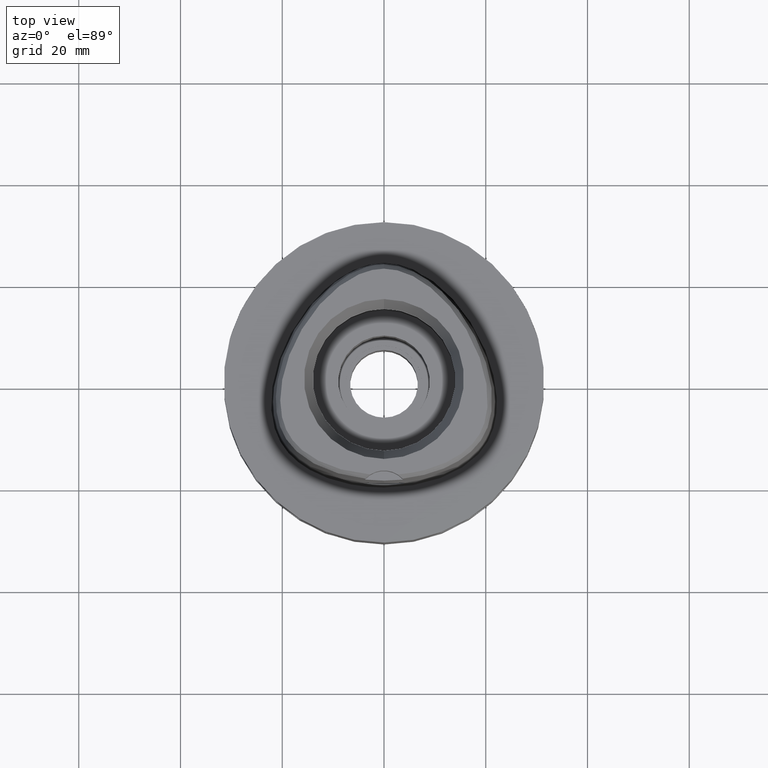
[diagram: clean part render]
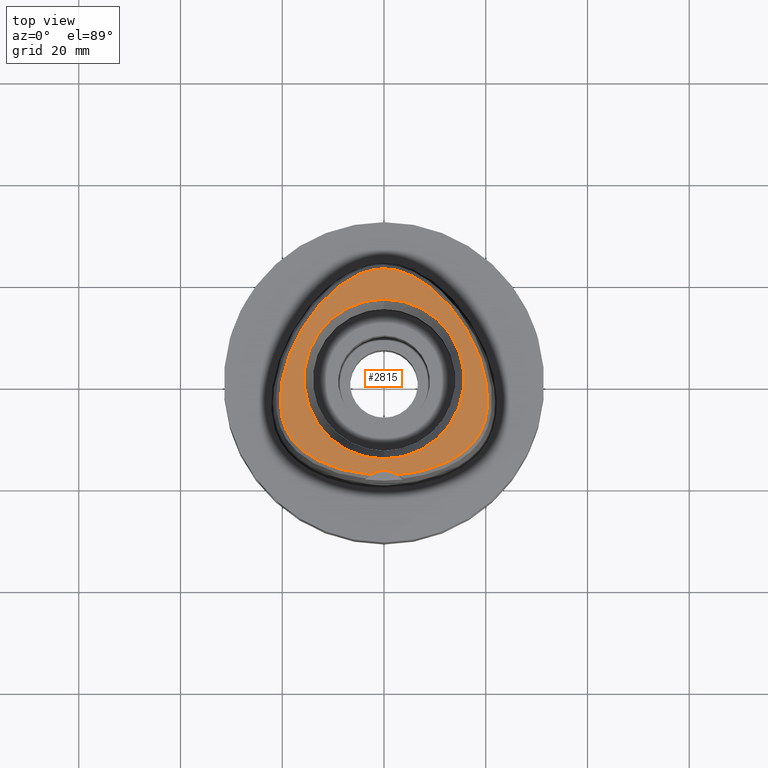
[diagram: same view with one face highlighted and labeled with its STEP entity id]
A machine part, top view. The second image highlights one B-rep face of the part: STEP entity #2815.
In plain terms, the highlighted planar face has unit normal (0, 0, 1).
Its self-contained STEP definition (entity closure, byte-faithful):
#86 = CARTESIAN_POINT ( 'NONE',  ( -10.17136073855374789, -17.24644253470380306, 38.00000000000444800 ) ) ;
#113 = CARTESIAN_POINT ( 'NONE',  ( -4.706994425064517706, -18.56721852572872677, 38.00000000000449063 ) ) ;
#142 = CARTESIAN_POINT ( 'NONE',  ( 19.78323211892965716, -8.541156231035873958, 37.99999999999725731 ) ) ;
#172 = CARTESIAN_POINT ( 'NONE',  ( 1.325020189552460037, 21.61081414408899803, 38.00000000000054712 ) ) ;
#175 = CARTESIAN_POINT ( 'NONE',  ( -18.79649882725230725, 4.256255933891756271, 37.99999999999073452 ) ) ;
#178 = CARTESIAN_POINT ( 'NONE',  ( 2.682287482605000051, -18.78036330228999873, 38.00000000000000000 ) ) ;
#197 = CARTESIAN_POINT ( 'NONE',  ( 12.44125753246211907, 14.89118158853625751, 37.99999999999641886 ) ) ;
#252 = CARTESIAN_POINT ( 'NONE',  ( 0.6513209347955434270, 21.67370899611415780, 38.00000000000317613 ) ) ;
#273 = B_SPLINE_CURVE_WITH_KNOTS ( 'NONE', 3,
 ( #2626, #1835, #602, #113, #4305, #2659, #5167, #86, #1799, #4700, #3519, #1745, #2599, #949, #3042, #4731, #4278, #1399, #511, #1861, #1771, #3075, #1002, #4755, #1037, #5194, #2716, #3454, #5130, #2686, #4363, #2279, #3976, #1361, #3952, #175, #3543, #5222, #3132, #4397, #627, #2306, #653, #3600, #2400, #1583, #5321, #4449, #1938, #4527, #2794, #3648, #2328, #3627, #279, #2740, #4003, #1915, #3160, #5275 ),
 .UNSPECIFIED., .F., .F.,
 ( 4, 1, 1, 1, 1, 1, 1, 1, 1, 1, 1, 1, 1, 1, 1, 1, 1, 1, 1, 1, 1, 1, 1, 1, 1, 1, 1, 1, 1, 1, 1, 1, 1, 1, 1, 1, 1, 1, 1, 1, 1, 1, 1, 1, 1, 1, 1, 1, 1, 1, 1, 1, 1, 1, 1, 1, 1, 4 ),
 ( 0.0000000000000000000, 0.005420919554200098744, 0.02318126027639999531, 0.04094160099879995407, 0.05870194172099996166, 0.07646228244330000035, 0.09422262316550000794, 0.1119829638877999356, 0.1297433046099999432, 0.1475036453321999508, 0.1652639860544999895, 0.1830243267768000281, 0.2007846674991000668, 0.2185450082212999634, 0.2363053489436000021, 0.2540656896658000097, 0.2718260303881000484, 0.2895863711103000560, 0.3073467118325999836, 0.3251070525547999912, 0.3428673932771000299, 0.3606277339994000686, 0.3783880747216000762, 0.3961484154438998928, 0.4139087561661000114, 0.4316690968884000501, 0.4494294376106000577, 0.4671897783328999854, 0.4849501190552000240, 0.5027104597774000316, 0.5204708004996999593, 0.5382311412219000779, 0.5559914819442000056, 0.5737518226664000132, 0.5915121633886999408, 0.6092725041108999484, 0.6270328448331999871, 0.6447931855555000258, 0.6625535262777000334, 0.6803138669999999610, 0.6980742077221999686, 0.7158345484445000073, 0.7335948891667000149, 0.7513552298890000536, 0.7691155706112000612, 0.7868759113336000199, 0.8046362520558000275, 0.8223965927780999552, 0.8401569335002999628, 0.8579172742224999704, 0.8756776149448000091, 0.8934379556670000166, 0.9111982963893099363, 0.9289586371115700070, 0.9467189778338299666, 0.9644793185560800453, 0.9822396592783400049, 1.000000000000000000 ),
 .UNSPECIFIED. ) ;
#279 = CARTESIAN_POINT ( 'NONE',  ( -2.735698246183474236, 21.34559102902269601, 38.00000000000270006 ) ) ;
#290 = FACE_BOUND ( 'NONE', #3432, .T. ) ;
#301 = CARTESIAN_POINT ( 'NONE',  ( 6.196495988003619004, -18.31673538864916040, 37.99999999999616307 ) ) ;
#306 = CIRCLE ( 'NONE', #4630, 15.71487483155999776 ) ;
#401 = PLANE ( 'NONE',  #2953 ) ;
#511 = CARTESIAN_POINT ( 'NONE',  ( -18.31748213707427908, -11.58791794387968643, 37.99999999999817391 ) ) ;
#567 = CARTESIAN_POINT ( 'NONE',  ( 4.255661039972708615, 20.86618068829861627, 37.99999999999197087 ) ) ;
#602 = CARTESIAN_POINT ( 'NONE',  ( -3.522896839654153123, -18.70811514173789547, 37.99999999999940314 ) ) ;
#623 = CARTESIAN_POINT ( 'NONE',  ( 2.736932690727049700, 21.34527940057159157, 37.99999999999713651 ) ) ;
#627 = CARTESIAN_POINT ( 'NONE',  ( -15.24692477332593832, 11.25717358966707060, 38.00000000000265032 ) ) ;
#653 = CARTESIAN_POINT ( 'NONE',  ( -13.40435640711487864, 13.76268382997171003, 37.99999999999527489 ) ) ;
#723 = CARTESIAN_POINT ( 'NONE',  ( 19.54993126781585389, -9.226212439886355199, 37.99999999999922551 ) ) ;
#726 = VERTEX_POINT ( 'NONE', #2974 ) ;
#739 = DIRECTION ( 'NONE',  ( 1.000000000000000000, 0.0000000000000000000, 0.0000000000000000000 ) ) ;
#750 = CARTESIAN_POINT ( 'NONE',  ( 17.91165267838870889, -12.13575389398076965, 38.00000000000229505 ) ) ;
#777 = CARTESIAN_POINT ( 'NONE',  ( 7.606839420237251126, -18.00827588386171740, 37.99999999999702283 ) ) ;
#930 = DIRECTION ( 'NONE',  ( 0.0000000000000000000, 1.000000000000000000, 0.0000000000000000000 ) ) ;
#934 = DIRECTION ( 'NONE',  ( 0.0000000000000000000, 1.000000000000000000, 0.0000000000000000000 ) ) ;
#945 = CARTESIAN_POINT ( 'NONE',  ( 0.0000000000000000000, -15.71487483155999776, 38.00000000000000000 ) ) ;
#949 = CARTESIAN_POINT ( 'NONE',  ( -15.71788912669431681, -14.29843101566143027, 37.99999999999405276 ) ) ;
#1002 = CARTESIAN_POINT ( 'NONE',  ( -19.54919922642054075, -9.228169790568536257, 38.00000000000173372 ) ) ;
#1037 = CARTESIAN_POINT ( 'NONE',  ( -19.98419490691567901, -7.809898894995969343, 37.99999999999875655 ) ) ;
#1061 = CARTESIAN_POINT ( 'NONE',  ( 16.09765529146371321, 9.909410920133332468, 37.99999999999095479 ) ) ;
#1084 = CARTESIAN_POINT ( 'NONE',  ( 19.64387775268415126, 1.522048414458394117, 37.99999999999958789 ) ) ;
#1113 = CARTESIAN_POINT ( 'NONE',  ( 4.715576077242017661, -18.56597918135031833, 37.99999999999604938 ) ) ;
#1187 = CARTESIAN_POINT ( 'NONE',  ( 19.28677546797380771, -9.867757137506218967, 37.99999999999655387 ) ) ;
#1219 = DIRECTION ( 'NONE',  ( 0.0000000000000000000, 0.0000000000000000000, 1.000000000000000000 ) ) ;
#1308 = ORIENTED_EDGE ( 'NONE', *, *, #2416, .F. ) ;
#1335 = VERTEX_POINT ( 'NONE', #4036 ) ;
#1361 = CARTESIAN_POINT ( 'NONE',  ( -19.64434054693244391, 1.520253387635722042, 37.99999999999833733 ) ) ;
#1399 = CARTESIAN_POINT ( 'NONE',  ( -17.91005512243888731, -12.13778127739902324, 37.99999999999863576 ) ) ;
#1447 = CARTESIAN_POINT ( 'NONE',  ( 7.655962789343798036, 19.09402979099454001, 38.00000000000375877 ) ) ;
#1483 = CARTESIAN_POINT ( 'NONE',  ( 2.018320379028085032, 21.50256508436634206, 37.99999999999489830 ) ) ;
#1532 = CARTESIAN_POINT ( 'NONE',  ( 20.27923816685482450, -6.179850483268137573, 38.00000000000208189 ) ) ;
#1561 = CARTESIAN_POINT ( 'NONE',  ( 0.0000000000000000000, 0.0000000000000000000, 38.00000000000000000 ) ) ;
#1583 = CARTESIAN_POINT ( 'NONE',  ( -10.48962422759879054, 16.86631853279006776, 38.00000000000246558 ) ) ;
#1745 = CARTESIAN_POINT ( 'NONE',  ( -14.21001600787439756, -15.34519100085975651, 37.99999999999709388 ) ) ;
#1771 = CARTESIAN_POINT ( 'NONE',  ( -18.99520880203909101, -10.46968343926526046, 38.00000000000003553 ) ) ;
#1799 = CARTESIAN_POINT ( 'NONE',  ( -11.31790883121301583, -16.80796958613770897, 37.99999999999212719 ) ) ;
#1831 = CARTESIAN_POINT ( 'NONE',  ( 15.24661770199428190, 11.25762885478387432, 37.99999999999771205 ) ) ;
#1835 = CARTESIAN_POINT ( 'NONE',  ( -2.841965291530528681, -18.76757795571863241, 37.99999999999891998 ) ) ;
#1861 = CARTESIAN_POINT ( 'NONE',  ( -18.67608643721939643, -11.03561202291267662, 38.00000000000157030 ) ) ;
#1877 = EDGE_CURVE ( 'NONE', #726, #5355, #4528, .T. ) ;
#1915 = CARTESIAN_POINT ( 'NONE',  ( -0.6498990081535477303, 21.67378274708112329, 37.99999999999444356 ) ) ;
#1936 = CARTESIAN_POINT ( 'NONE',  ( 20.30478359881485417, -2.175347700950605923, 37.99999999999539568 ) ) ;
#1938 = CARTESIAN_POINT ( 'NONE',  ( -7.655222869372892980, 19.09452359226769502, 37.99999999999257483 ) ) ;
#1960 = CARTESIAN_POINT ( 'NONE',  ( 15.72078707639994199, -14.29615620309490964, 37.99999999999574385 ) ) ;
#2039 = CARTESIAN_POINT ( 'NONE',  ( 13.33890749495820671, -15.84912955620109187, 37.99999999999750599 ) ) ;
#2068 = CARTESIAN_POINT ( 'NONE',  ( 11.32341394162737380, -16.80569392800371276, 37.99999999999388933 ) ) ;
#2242 = CARTESIAN_POINT ( 'NONE',  ( 18.79595068775649480, 4.257753965102302196, 37.99999999999671729 ) ) ;
#2279 = CARTESIAN_POINT ( 'NONE',  ( -20.16012968311571285, -1.009698174524256586, 38.00000000000157740 ) ) ;
#2304 = CARTESIAN_POINT ( 'NONE',  ( 9.524842839488044888, 17.70516372194487431, 38.00000000000207478 ) ) ;
#2306 = CARTESIAN_POINT ( 'NONE',  ( -14.34402387966321513, 12.54761970512633518, 38.00000000000000000 ) ) ;
#2328 = CARTESIAN_POINT ( 'NONE',  ( -4.254559144978006913, 20.86660163697580828, 37.99999999999677414 ) ) ;
#2330 = VERTEX_POINT ( 'NONE', #3789 ) ;
#2334 = ORIENTED_EDGE ( 'NONE', *, *, #4180, .F. ) ;
#2353 = CARTESIAN_POINT ( 'NONE',  ( 20.15982952132432260, -1.007721426051790825, 38.00000000000218137 ) ) ;
#2373 = CARTESIAN_POINT ( 'NONE',  ( 2.682287482605000051, -18.78036330228999873, 38.00000000000000000 ) ) ;
#2400 = CARTESIAN_POINT ( 'NONE',  ( -11.46564124494196513, 15.92741340513292769, 37.99999999999345590 ) ) ;
#2416 = EDGE_CURVE ( 'NONE', #1335, #2330, #273, .T. ) ;
#2482 = CARTESIAN_POINT ( 'NONE',  ( 10.17751632998551159, -17.24426134458732918, 37.99999999999791100 ) ) ;
#2499 = ORIENTED_EDGE ( 'NONE', *, *, #5016, .F. ) ;
#2571 = B_SPLINE_CURVE_WITH_KNOTS ( 'NONE', 3,
 ( #4780, #4395, #252, #172, #1483, #623, #3103, #567, #4030, #3541, #5219, #1447, #3129, #2304, #3157, #3974, #197, #5246, #4836, #1831, #1061, #3597, #5272, #3184, #2242, #4862, #1084, #2763, #2353, #1936, #3625, #5298, #2654, #1532, #4753, #3917, #142, #723, #1187, #4054, #4160, #3722, #750, #2792, #2873, #4559, #1960, #4076, #3698, #2039, #3675, #2068, #2482, #3239, #777, #301, #1113, #5376, #3207, #2373 ),
 .UNSPECIFIED., .F., .F.,
 ( 4, 1, 1, 1, 1, 1, 1, 1, 1, 1, 1, 1, 1, 1, 1, 1, 1, 1, 1, 1, 1, 1, 1, 1, 1, 1, 1, 1, 1, 1, 1, 1, 1, 1, 1, 1, 1, 1, 1, 1, 1, 1, 1, 1, 1, 1, 1, 1, 1, 1, 1, 1, 1, 1, 1, 1, 1, 4 ),
 ( 0.0000000000000000000, 0.01775854187129999318, 0.03551708374169992855, 0.05327562561200005486, 0.07103416748239999023, 0.08879270935270000553, 0.1065512512231000519, 0.1243097930933999562, 0.1420683349638000026, 0.1598268768341000179, 0.1775854187044000332, 0.1953439605747999686, 0.2131025024450999839, 0.2308610443155000302, 0.2486195861857999345, 0.2663781280563000120, 0.2841366699266000273, 0.3018952117970000737, 0.3196537536672999780, 0.3374122955377000244, 0.3551708374080000397, 0.3729293792782999439, 0.3906879211486999903, 0.4084464630190000056, 0.4262050048894000520, 0.4439635467596999563, 0.4617220886301000027, 0.4794806305004000180, 0.4972391723707999533, 0.5149977142410999686, 0.5327562561113999839, 0.5505147979818000303, 0.5682733398521000456, 0.5860318817224999810, 0.6037904235927999963, 0.6215489654632000427, 0.6393075073334999470, 0.6570660492038999934, 0.6748245910742000087, 0.6925831329445000240, 0.7103416748149000703, 0.7281002166851999746, 0.7458587585556000210, 0.7636173004259000363, 0.7813758422962999717, 0.7991343841665999870, 0.8168929260370000334, 0.8346514679073000487, 0.8524100097776999840, 0.8701685516479999993, 0.8879270935183000146, 0.9056856353886799660, 0.9234441772589799813, 0.9412027191293600437, 0.9589612609997000270, 0.9767198028700500023, 0.9944783447403919840, 1.000000000000000000 ),
 .UNSPECIFIED. ) ;
#2599 = CARTESIAN_POINT ( 'NONE',  ( -15.00295592774140019, -14.82617991126211798, 37.99999999999914024 ) ) ;
#2626 = CARTESIAN_POINT ( 'NONE',  ( -2.682279906006999948, -18.78035848609999903, 38.00000000000000000 ) ) ;
#2654 = CARTESIAN_POINT ( 'NONE',  ( 20.36412151361240674, -5.276385427453623045, 37.99999999999580780 ) ) ;
#2659 = CARTESIAN_POINT ( 'NONE',  ( -7.599370508970960003, -18.01010694911684951, 37.99999999999879918 ) ) ;
#2686 = CARTESIAN_POINT ( 'NONE',  ( -20.38301517462918966, -3.278344853327717967, 37.99999999999993605 ) ) ;
#2716 = CARTESIAN_POINT ( 'NONE',  ( -20.27898581532774358, -6.181921586190500584, 37.99999999999534595 ) ) ;
#2740 = CARTESIAN_POINT ( 'NONE',  ( -2.017025177696464500, 21.50280829368302093, 37.99999999999393907 ) ) ;
#2763 = CARTESIAN_POINT ( 'NONE',  ( 19.94150023628099788, 0.2261566111945268187, 37.99999999999849365 ) ) ;
#2783 = AXIS2_PLACEMENT_3D ( 'NONE', #4770, #4713, #934 ) ;
#2792 = CARTESIAN_POINT ( 'NONE',  ( 17.45306278053644178, -12.68156296993868359, 37.99999999999921130 ) ) ;
#2794 = CARTESIAN_POINT ( 'NONE',  ( -5.893543501601852697, 20.13235399352315724, 38.00000000000446931 ) ) ;
#2815 = ADVANCED_FACE ( 'NONE', ( #5365, #290 ), #401, .T. ) ;
#2873 = CARTESIAN_POINT ( 'NONE',  ( 16.93855157777791831, -13.22377441789378416, 37.99999999999563016 ) ) ;
#2902 = DIRECTION ( 'NONE',  ( 0.0000000000000000000, -1.000000000000000000, 0.0000000000000000000 ) ) ;
#2953 = AXIS2_PLACEMENT_3D ( 'NONE', #4573, #3737, #739 ) ;
#2974 = CARTESIAN_POINT ( 'NONE',  ( 0.0000000000000000000, 15.71487483155999776, 38.00000000000000000 ) ) ;
#3042 = CARTESIAN_POINT ( 'NONE',  ( -16.36032397154120588, -13.76458520345357250, 37.99999999999922551 ) ) ;
#3075 = CARTESIAN_POINT ( 'NONE',  ( -19.28591707036659386, -9.869682450887138359, 37.99999999999221245 ) ) ;
#3103 = CARTESIAN_POINT ( 'NONE',  ( 3.482188079160276839, 21.13472718027737685, 37.99999999999462830 ) ) ;
#3108 = EDGE_LOOP ( 'NONE', ( #5388, #1308, #2334 ) ) ;
#3129 = CARTESIAN_POINT ( 'NONE',  ( 8.578848111817228173, 18.44609846599589176, 37.99999999999308642 ) ) ;
#3132 = CARTESIAN_POINT ( 'NONE',  ( -16.88647904405548061, 8.517821442303015189, 38.00000000000065370 ) ) ;
#3157 = CARTESIAN_POINT ( 'NONE',  ( 10.48999540691041688, 16.86597469870065424, 37.99999999999776179 ) ) ;
#3160 = CARTESIAN_POINT ( 'NONE',  ( -0.2181979014508676762, 21.68728795389064601, 37.99999999999275246 ) ) ;
#3170 = DIRECTION ( 'NONE',  ( 0.0000000000000000000, 0.0000000000000000000, 1.000000000000000000 ) ) ;
#3184 = CARTESIAN_POINT ( 'NONE',  ( 18.24247239569677603, 5.672548708071828649, 37.99999999999695177 ) ) ;
#3191 = VERTEX_POINT ( 'NONE', #178 ) ;
#3207 = CARTESIAN_POINT ( 'NONE',  ( 2.845098933833245525, -18.76733062685659803, 38.00000000000077449 ) ) ;
#3239 = CARTESIAN_POINT ( 'NONE',  ( 8.936919536467458514, -17.64796721715088879, 37.99999999999982236 ) ) ;
#3432 = EDGE_LOOP ( 'NONE', ( #2499, #5416 ) ) ;
#3454 = CARTESIAN_POINT ( 'NONE',  ( -20.36398648679638868, -5.278470727085379899, 37.99999999999672440 ) ) ;
#3519 = CARTESIAN_POINT ( 'NONE',  ( -13.33457781970220957, -15.85148397417425414, 38.00000000000395062 ) ) ;
#3541 = CARTESIAN_POINT ( 'NONE',  ( 5.894487344449969690, 20.13186406532188499, 37.99999999999617728 ) ) ;
#3543 = CARTESIAN_POINT ( 'NONE',  ( -18.24302769442606120, 5.671232572958836649, 37.99999999999507594 ) ) ;
#3563 = AXIS2_PLACEMENT_3D ( 'NONE', #3873, #3170, #930 ) ;
#3597 = CARTESIAN_POINT ( 'NONE',  ( 16.88599964843029255, 8.518708218770242979, 37.99999999999726441 ) ) ;
#3600 = CARTESIAN_POINT ( 'NONE',  ( -12.44116897271573130, 14.89128547410139980, 37.99999999999814548 ) ) ;
#3625 = CARTESIAN_POINT ( 'NONE',  ( 20.38292172608090169, -3.276278498261347760, 37.99999999999415223 ) ) ;
#3627 = CARTESIAN_POINT ( 'NONE',  ( -3.481017203589181097, 21.13509756881825297, 37.99999999999314326 ) ) ;
#3648 = CARTESIAN_POINT ( 'NONE',  ( -5.058220461389576705, 20.53445508814749232, 37.99999999999626255 ) ) ;
#3675 = CARTESIAN_POINT ( 'NONE',  ( 12.37622418509981159, -16.33871033286115804, 37.99999999999807443 ) ) ;
#3698 = CARTESIAN_POINT ( 'NONE',  ( 14.21382211799703832, -15.34284287400226532, 37.99999999999817391 ) ) ;
#3722 = CARTESIAN_POINT ( 'NONE',  ( 18.31883910943043148, -11.58595831188045189, 37.99999999999874944 ) ) ;
#3737 = DIRECTION ( 'NONE',  ( 0.0000000000000000000, 0.0000000000000000000, 1.000000000000000000 ) ) ;
#3789 = CARTESIAN_POINT ( 'NONE',  ( -3.470663397168999981E-11, 21.68728795390000030, 38.00000000000000000 ) ) ;
#3873 = CARTESIAN_POINT ( 'NONE',  ( 0.0000000000000000000, 0.0000000000000000000, 38.00000000000000000 ) ) ;
#3917 = CARTESIAN_POINT ( 'NONE',  ( 19.98468477322735737, -7.807876343103750116, 37.99999999999727862 ) ) ;
#3952 = CARTESIAN_POINT ( 'NONE',  ( -19.26324493738955113, 2.868570891457154381, 37.99999999999809575 ) ) ;
#3974 = CARTESIAN_POINT ( 'NONE',  ( 11.46587147800432405, 15.92717600802780176, 38.00000000000085976 ) ) ;
#3976 = CARTESIAN_POINT ( 'NONE',  ( -19.94188961899422097, 0.2242544969878482453, 38.00000000000526512 ) ) ;
#4003 = CARTESIAN_POINT ( 'NONE',  ( -1.323674540694511625, 21.61098849315684234, 37.99999999999914024 ) ) ;
#4030 = CARTESIAN_POINT ( 'NONE',  ( 5.059249257020949742, 20.53399274678973541, 37.99999999999440803 ) ) ;
#4036 = CARTESIAN_POINT ( 'NONE',  ( -2.682279906006999948, -18.78035848609999903, 38.00000000000000000 ) ) ;
#4054 = CARTESIAN_POINT ( 'NONE',  ( 18.99619228226562839, -10.46780014453366014, 37.99999999999252509 ) ) ;
#4076 = CARTESIAN_POINT ( 'NONE',  ( 15.00628712263274522, -14.82385870795122607, 37.99999999999042188 ) ) ;
#4160 = CARTESIAN_POINT ( 'NONE',  ( 18.67722910597819563, -11.03372143227935531, 37.99999999999970868 ) ) ;
#4180 = EDGE_CURVE ( 'NONE', #3191, #1335, #5068, .T. ) ;
#4278 = CARTESIAN_POINT ( 'NONE',  ( -17.45119705494292717, -12.68365517585680813, 38.00000000000247979 ) ) ;
#4305 = CARTESIAN_POINT ( 'NONE',  ( -6.188376196366981219, -18.31830638231314623, 37.99999999999720046 ) ) ;
#4363 = CARTESIAN_POINT ( 'NONE',  ( -20.30498420086935951, -2.177378896257867069, 38.00000000000001421 ) ) ;
#4395 = CARTESIAN_POINT ( 'NONE',  ( 0.2185816947241100150, 21.68728795389527164, 38.00000000000043343 ) ) ;
#4397 = CARTESIAN_POINT ( 'NONE',  ( -16.09805956313927666, 9.908742513516006767, 38.00000000000490985 ) ) ;
#4449 = CARTESIAN_POINT ( 'NONE',  ( -8.578220530114409215, 18.44656747108936656, 38.00000000000102318 ) ) ;
#4527 = CARTESIAN_POINT ( 'NONE',  ( -6.759433772717683198, 19.65454812512805916, 37.99999999999673861 ) ) ;
#4528 = CIRCLE ( 'NONE', #3563, 15.71487483155999776 ) ;
#4559 = CARTESIAN_POINT ( 'NONE',  ( 16.36283630828771152, -13.76236604535239394, 37.99999999999642597 ) ) ;
#4573 = CARTESIAN_POINT ( 'NONE',  ( 0.0000000000000000000, 0.0000000000000000000, 38.00000000000000000 ) ) ;
#4630 = AXIS2_PLACEMENT_3D ( 'NONE', #1561, #1219, #2902 ) ;
#4700 = CARTESIAN_POINT ( 'NONE',  ( -12.37132652997893700, -16.34104299088048862, 37.99999999999519673 ) ) ;
#4713 = DIRECTION ( 'NONE',  ( 0.0000000000000000000, 0.0000000000000000000, 1.000000000000000000 ) ) ;
#4731 = CARTESIAN_POINT ( 'NONE',  ( -16.93638123745951773, -13.22593246128242583, 37.99999999999400302 ) ) ;
#4753 = CARTESIAN_POINT ( 'NONE',  ( 20.15127154947196431, -7.022178451341019922, 37.99999999999980105 ) ) ;
#4755 = CARTESIAN_POINT ( 'NONE',  ( -19.78262210840363622, -8.543146992552966168, 38.00000000000376588 ) ) ;
#4770 = CARTESIAN_POINT ( 'NONE',  ( 0.0000000000000000000, -23.00000000000000000, 38.00000000000000000 ) ) ;
#4780 = CARTESIAN_POINT ( 'NONE',  ( -3.470663397168999981E-11, 21.68728795390000030, 38.00000000000000000 ) ) ;
#4836 = CARTESIAN_POINT ( 'NONE',  ( 14.34383722811494266, 12.54786717290686759, 37.99999999999803890 ) ) ;
#4862 = CARTESIAN_POINT ( 'NONE',  ( 19.26272899268844085, 2.870227893749347725, 37.99999999999655387 ) ) ;
#4941 = EDGE_CURVE ( 'NONE', #2330, #3191, #2571, .T. ) ;
#5016 = EDGE_CURVE ( 'NONE', #5355, #726, #306, .T. ) ;
#5068 = CIRCLE ( 'NONE', #2783, 5.000000000000000888 ) ;
#5130 = CARTESIAN_POINT ( 'NONE',  ( -20.40060226223202378, -4.311417605381138607, 37.99999999999957367 ) ) ;
#5167 = CARTESIAN_POINT ( 'NONE',  ( -8.930096025510760427, -17.65000298921626154, 38.00000000000330402 ) ) ;
#5194 = CARTESIAN_POINT ( 'NONE',  ( -20.15090095364728029, -7.024227649787813554, 38.00000000000594724 ) ) ;
#5219 = CARTESIAN_POINT ( 'NONE',  ( 6.760281394351527418, 19.65404668909712527, 37.99999999999680966 ) ) ;
#5222 = CARTESIAN_POINT ( 'NONE',  ( -17.60426951087017144, 7.098774535282072584, 37.99999999999323563 ) ) ;
#5246 = CARTESIAN_POINT ( 'NONE',  ( 13.40430406168513322, 13.76274261013138833, 38.00000000000040501 ) ) ;
#5272 = CARTESIAN_POINT ( 'NONE',  ( 17.60373714027794989, 7.099883643192991478, 37.99999999999874234 ) ) ;
#5275 = CARTESIAN_POINT ( 'NONE',  ( -3.470663397168999981E-11, 21.68728795390000030, 38.00000000000000000 ) ) ;
#5298 = CARTESIAN_POINT ( 'NONE',  ( 20.40062138794801783, -4.309334958867509613, 38.00000000000188294 ) ) ;
#5321 = CARTESIAN_POINT ( 'NONE',  ( -9.524337278002541041, 17.70558492631519698, 37.99999999999810285 ) ) ;
#5355 = VERTEX_POINT ( 'NONE', #945 ) ;
#5365 = FACE_OUTER_BOUND ( 'NONE', #3108, .T. ) ;
#5376 = CARTESIAN_POINT ( 'NONE',  ( 3.529311563348632941, -18.70747079909890331, 37.99999999999987210 ) ) ;
#5388 = ORIENTED_EDGE ( 'NONE', *, *, #4941, .F. ) ;
#5416 = ORIENTED_EDGE ( 'NONE', *, *, #1877, .F. ) ;